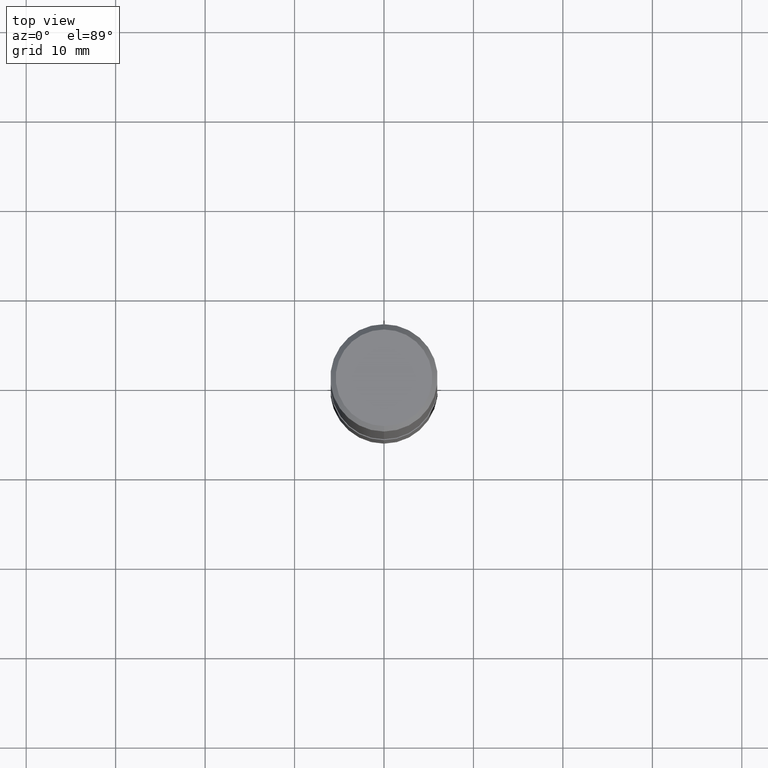
[diagram: clean part render]
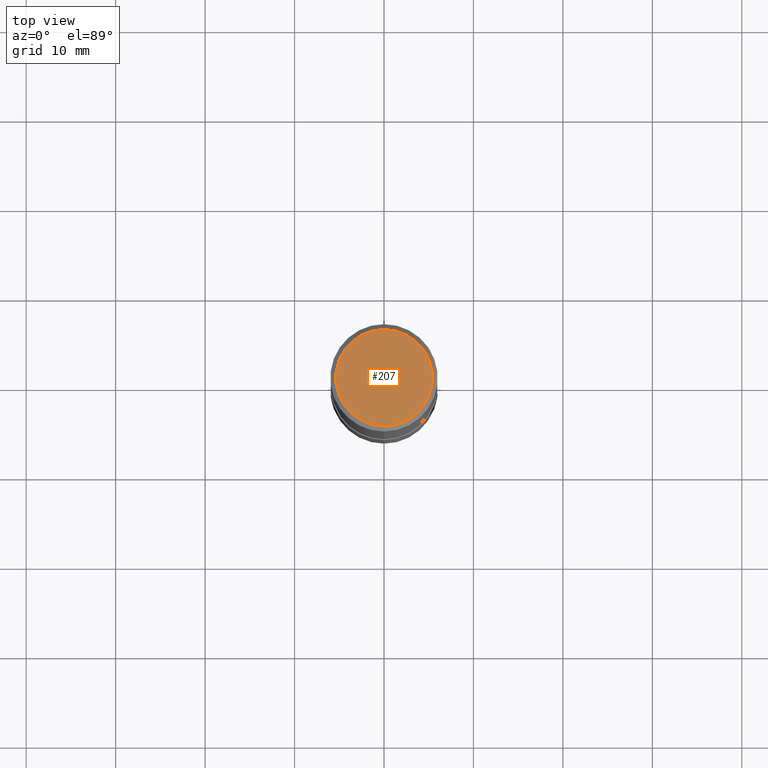
[diagram: same view with one face highlighted and labeled with its STEP entity id]
A machine part, top view. The second image highlights one B-rep face of the part: STEP entity #207.
In plain terms, the highlighted planar face has unit normal (-0, 0, 1).
Its self-contained STEP definition (entity closure, byte-faithful):
#129=VERTEX_POINT('',#318);
#135=EDGE_CURVE('',#233,#129,#324,.T.);
#197=EDGE_CURVE('',#129,#233,#397,.T.);
#207=ADVANCED_FACE('',(#410),#411,.T.);
#233=VERTEX_POINT('',#439);
#318=CARTESIAN_POINT('',(6.61287431064084E-016,-5.4,0.0));
#324=CIRCLE('',#531,5.4);
#397=CIRCLE('',#620,5.4);
#410=FACE_OUTER_BOUND('',#635,.T.);
#411=PLANE('',#636);
#439=CARTESIAN_POINT('',(0.0,5.4,0.0));
#531=AXIS2_PLACEMENT_3D('',#776,#777,#778);
#620=AXIS2_PLACEMENT_3D('',#876,#877,#878);
#635=EDGE_LOOP('',(#905,#906));
#636=AXIS2_PLACEMENT_3D('',#907,#908,#909);
#776=CARTESIAN_POINT('',(0.0,0.0,0.0));
#777=DIRECTION('',(0.0,0.0,-1.0));
#778=DIRECTION('',(0.0,1.0,0.0));
#876=CARTESIAN_POINT('',(0.0,0.0,0.0));
#877=DIRECTION('',(0.0,0.0,-1.0));
#878=DIRECTION('',(0.0,1.0,0.0));
#905=ORIENTED_EDGE('',*,*,#135,.F.);
#906=ORIENTED_EDGE('',*,*,#197,.F.);
#907=CARTESIAN_POINT('',(0.0,2.7,0.0));
#908=DIRECTION('',(-0.0,0.0,1.0));
#909=DIRECTION('',(0.0,-1.0,0.0));